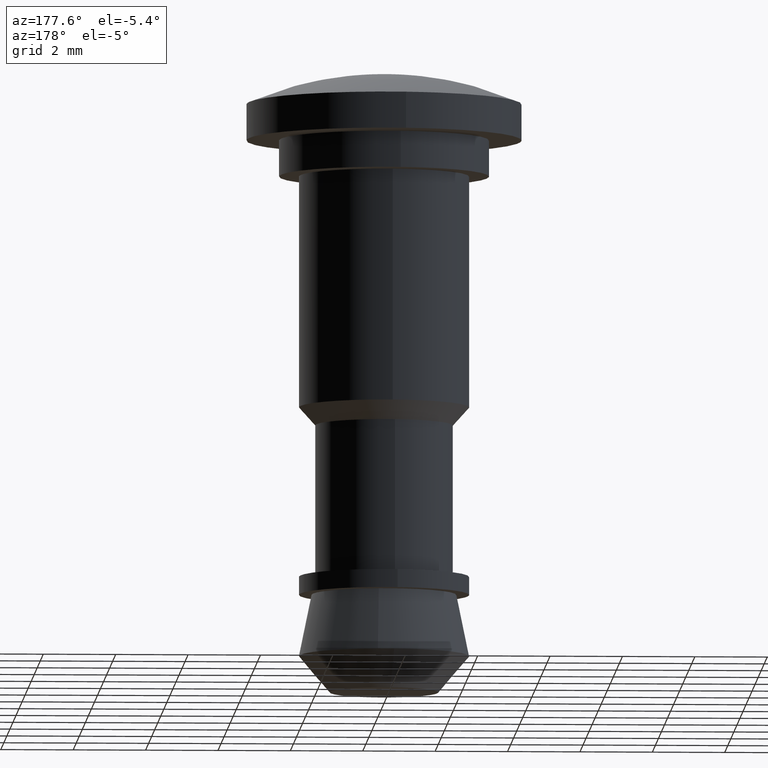
[diagram: clean part render]
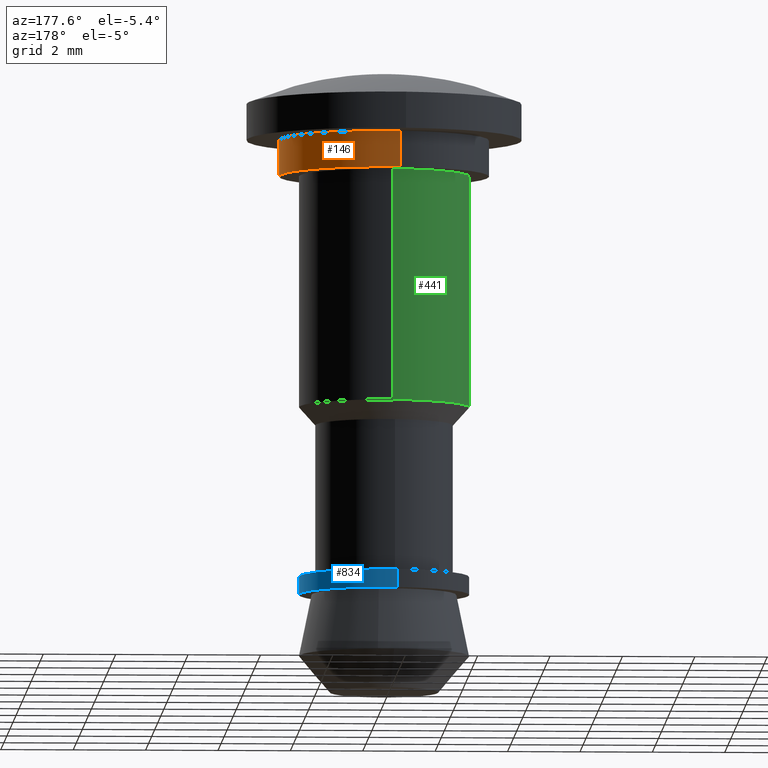
[diagram: same view with three faces highlighted in distinct colors, each labeled with its STEP entity id]
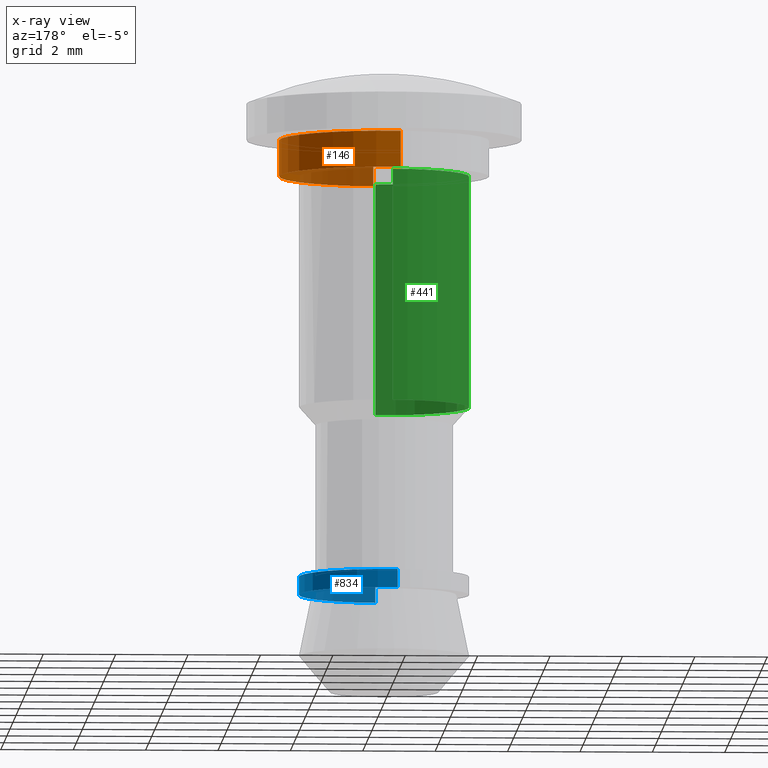
[diagram: x-ray of the same camera — body ghosted, the three highlighted faces saturated]
A machine part, auxiliary view with three faces highlighted in distinct colors.
The next image is the same camera in x-ray (body ghosted, the three faces saturated) — at least one of them is partly hidden behind the body in this view.
Their STEP definitions:

[orange] entity #146 — the highlighted face is a freeform B-spline surface patch.
#44=CARTESIAN_POINT('',(-0.342299280504600,2.879727626454632,1.025000000000000));
#45=CARTESIAN_POINT('',(-0.259882713050135,2.889524084800957,1.025000000000000));
#46=CARTESIAN_POINT('',(-0.177040764651085,2.894590915423414,1.025000000000000));
#47=CARTESIAN_POINT('',(2.717550150772328,3.071631680074499,1.025000000000000));
#48=CARTESIAN_POINT('',(2.894590915423414,0.177040764651085,1.025000000000000));
#49=CARTESIAN_POINT('',(3.071631680074499,-2.717550150772328,1.025000000000000));
#50=CARTESIAN_POINT('',(0.177040764651085,-2.894590915423414,1.025000000000000));
#51=CARTESIAN_POINT('',(-0.342299280504600,2.879727626454632,-0.025625000000000));
#52=CARTESIAN_POINT('',(-0.259882713050135,2.889524084800957,-0.025625000000000));
#53=CARTESIAN_POINT('',(-0.177040764651085,2.894590915423414,-0.025625000000000));
#54=CARTESIAN_POINT('',(2.717550150772328,3.071631680074499,-0.025625000000000));
#55=CARTESIAN_POINT('',(2.894590915423414,0.177040764651085,-0.025625000000000));
#56=CARTESIAN_POINT('',(3.071631680074499,-2.717550150772328,-0.025625000000000));
#57=CARTESIAN_POINT('',(0.177040764651085,-2.894590915423414,-0.025625000000000));
#65=(BOUNDED_SURFACE()B_SPLINE_SURFACE(2,1,((#44,#51),(#45,#52),(#46,#53),(#47,#54),(#48,#55),(#49,#56),(#50,#57)),.UNSPECIFIED.,.F.,.F.,.U.)B_SPLINE_SURFACE_WITH_KNOTS((3,2,2,3),(2,2),(0.0,0.192195092941116,4.997072416469019,9.801949739996921),(0.0,1.0),.UNSPECIFIED.)GEOMETRIC_REPRESENTATION_ITEM()RATIONAL_B_SPLINE_SURFACE(((0.977505800795127,0.977505800795127),(0.988284271247462,0.988284271247462),(1.0,1.0),(0.707106781186548,0.707106781186548),(1.0,1.0),(0.707106781186548,0.707106781186548),(1.0,1.0)))REPRESENTATION_ITEM('')SURFACE());
#66=CARTESIAN_POINT('',(-0.342295316084380,2.879728097680535,1.000000000000084));
#67=VERTEX_POINT('',#66);
#68=CARTESIAN_POINT('',(2.900000000000000,0.0,1.0));
#69=VERTEX_POINT('',#68);
#70=CARTESIAN_POINT('',(-0.342295316084380,2.879728097680535,1.000000000000084));
#71=CARTESIAN_POINT('',(-0.171747943825167,2.900000000000000,1.0));
#72=CARTESIAN_POINT('',(0.0,2.900000000000000,1.0));
#73=CARTESIAN_POINT('',(2.900000000000000,2.900000000000000,1.0));
#74=CARTESIAN_POINT('',(2.900000000000000,0.0,1.0));
#82=(BOUNDED_CURVE()B_SPLINE_CURVE(2,(#70,#71,#72,#73,#74),.UNSPECIFIED.,.F.,.U.)B_SPLINE_CURVE_WITH_KNOTS((3,2,3),(0.229562706176520,0.250000000000000,0.500000000000000),.UNSPECIFIED.)CURVE()GEOMETRIC_REPRESENTATION_ITEM()RATIONAL_B_SPLINE_CURVE((0.956027210213232,0.976056220912819,1.0,0.707106781186548,1.0))REPRESENTATION_ITEM(''));
#83=EDGE_CURVE('',#67,#69,#82,.T.);
#84=ORIENTED_EDGE('',*,*,#83,.T.);
#85=CARTESIAN_POINT('',(0.177037979228234,-2.894591085784483,0.999999999999942));
#86=VERTEX_POINT('',#85);
#87=CARTESIAN_POINT('',(2.900000000000000,0.0,1.0));
#88=CARTESIAN_POINT('',(2.900000000000001,-2.728050224093783,1.0));
#89=CARTESIAN_POINT('',(0.177037979228234,-2.894591085784484,0.999999999999942));
#97=(BOUNDED_CURVE()B_SPLINE_CURVE(2,(#87,#88,#89),.UNSPECIFIED.,.F.,.U.)B_SPLINE_CURVE_WITH_KNOTS((3,3),(0.500000000000000,0.739333128281262),.UNSPECIFIED.)CURVE()GEOMETRIC_REPRESENTATION_ITEM()RATIONAL_B_SPLINE_CURVE((1.0,0.719603798756033,0.976072397527273))REPRESENTATION_ITEM(''));
#98=EDGE_CURVE('',#69,#86,#97,.T.);
#99=ORIENTED_EDGE('',*,*,#98,.T.);
#100=CARTESIAN_POINT('',(0.177038012750762,-2.894591083734222,-5.204170E-017));
#101=VERTEX_POINT('',#100);
#102=CARTESIAN_POINT('',(0.177037979228234,-2.894591085784483,0.999999999999942));
#103=CARTESIAN_POINT('',(0.177038012750762,-2.894591083734222,-5.204170E-017));
#104=QUASI_UNIFORM_CURVE('',1,(#102,#103),.UNSPECIFIED.,.F.,.U.);
#105=EDGE_CURVE('',#86,#101,#104,.T.);
#106=ORIENTED_EDGE('',*,*,#105,.T.);
#107=CARTESIAN_POINT('',(2.900000000000000,0.0,0.0));
#108=VERTEX_POINT('',#107);
#109=CARTESIAN_POINT('',(2.900000000000000,0.0,0.0));
#110=CARTESIAN_POINT('',(2.900000000000001,-2.728050192440946,0.0));
#111=CARTESIAN_POINT('',(0.177038012750762,-2.894591083734222,-5.204170E-017));
#119=(BOUNDED_CURVE()B_SPLINE_CURVE(2,(#109,#110,#111),.UNSPECIFIED.,.F.,.U.)B_SPLINE_CURVE_WITH_KNOTS((3,3),(0.500000000000000,0.739333126282981),.UNSPECIFIED.)CURVE()GEOMETRIC_REPRESENTATION_ITEM()RATIONAL_B_SPLINE_CURVE((1.0,0.719603801097165,0.976072393244570))REPRESENTATION_ITEM(''));
#120=EDGE_CURVE('',#108,#101,#119,.T.);
#121=ORIENTED_EDGE('',*,*,#120,.F.);
#122=CARTESIAN_POINT('',(-0.342295363880158,2.879728091999415,-5.146464E-017));
#123=VERTEX_POINT('',#122);
#124=CARTESIAN_POINT('',(-0.342295363880158,2.879728091999415,-5.146464E-017));
#125=CARTESIAN_POINT('',(-0.171747967975691,2.900000000000000,0.0));
#126=CARTESIAN_POINT('',(0.0,2.900000000000000,0.0));
#127=CARTESIAN_POINT('',(2.900000000000000,2.900000000000000,0.0));
#128=CARTESIAN_POINT('',(2.900000000000000,0.0,0.0));
#136=(BOUNDED_CURVE()B_SPLINE_CURVE(2,(#124,#125,#126,#127,#128),.UNSPECIFIED.,.F.,.U.)B_SPLINE_CURVE_WITH_KNOTS((3,2,3),(0.229562703371518,0.250000000000000,0.500000000000000),.UNSPECIFIED.)CURVE()GEOMETRIC_REPRESENTATION_ITEM()RATIONAL_B_SPLINE_CURVE((0.956027204715300,0.976056217626554,1.0,0.707106781186548,1.0))REPRESENTATION_ITEM(''));
#137=EDGE_CURVE('',#123,#108,#136,.T.);
#138=ORIENTED_EDGE('',*,*,#137,.F.);
#139=CARTESIAN_POINT('',(-0.342295316084380,2.879728097680535,1.000000000000084));
#140=CARTESIAN_POINT('',(-0.342295363880158,2.879728091999415,-5.146464E-017));
#141=QUASI_UNIFORM_CURVE('',1,(#139,#140),.UNSPECIFIED.,.F.,.U.);
#142=EDGE_CURVE('',#67,#123,#141,.T.);
#143=ORIENTED_EDGE('',*,*,#142,.F.);
#144=EDGE_LOOP('',(#84,#99,#106,#121,#138,#143));
#145=FACE_OUTER_BOUND('',#144,.T.);
#146=ADVANCED_FACE('',(#145),#65,.T.);

[blue] entity #834 — the highlighted face is a freeform B-spline surface patch.
#732=CARTESIAN_POINT('',(-0.277380451443382,2.333572386954616,-11.087500000000002));
#733=CARTESIAN_POINT('',(-0.210594612299248,2.341510896304224,-11.087499999999997));
#734=CARTESIAN_POINT('',(-0.143464067906914,2.345616776291387,-11.087500000000000));
#735=CARTESIAN_POINT('',(2.202152708384472,2.489080844198301,-11.087499999999999));
#736=CARTESIAN_POINT('',(2.345616776291387,0.143464067906914,-11.087500000000000));
#737=CARTESIAN_POINT('',(2.489080844198301,-2.202152708384472,-11.087499999999999));
#738=CARTESIAN_POINT('',(0.143464067906914,-2.345616776291387,-11.087500000000000));
#739=CARTESIAN_POINT('',(-0.277380451443382,2.333572386954616,-11.612812500000004));
#740=CARTESIAN_POINT('',(-0.210594612299248,2.341510896304224,-11.612812500000004));
#741=CARTESIAN_POINT('',(-0.143464067906914,2.345616776291387,-11.612812500000000));
#742=CARTESIAN_POINT('',(2.202152708384472,2.489080844198301,-11.612812500000002));
#743=CARTESIAN_POINT('',(2.345616776291387,0.143464067906914,-11.612812500000000));
#744=CARTESIAN_POINT('',(2.489080844198301,-2.202152708384472,-11.612812500000002));
#745=CARTESIAN_POINT('',(0.143464067906914,-2.345616776291387,-11.612812500000000));
#753=(BOUNDED_SURFACE()B_SPLINE_SURFACE(2,1,((#732,#739),(#733,#740),(#734,#741),(#735,#742),(#736,#743),(#737,#744),(#738,#745)),.UNSPECIFIED.,.F.,.F.,.U.)B_SPLINE_SURFACE_WITH_KNOTS((3,2,2,3),(2,2),(0.0,0.155744299452284,4.049351785759376,7.942959272066468),(0.0,1.0),.UNSPECIFIED.)GEOMETRIC_REPRESENTATION_ITEM()RATIONAL_B_SPLINE_SURFACE(((0.977505800795127,0.977505800795127),(0.988284271247462,0.988284271247462),(1.0,1.0),(0.707106781186548,0.707106781186548),(1.0,1.0),(0.707106781186548,0.707106781186548),(1.0,1.0)))REPRESENTATION_ITEM('')SURFACE());
#754=CARTESIAN_POINT('',(-0.277376736578888,2.333572828516576,-11.100000000000190));
#755=VERTEX_POINT('',#754);
#756=CARTESIAN_POINT('',(2.350000000000000,0.0,-11.100000000000000));
#757=VERTEX_POINT('',#756);
#758=CARTESIAN_POINT('',(-0.277376736578888,2.333572828516576,-11.100000000000195));
#759=CARTESIAN_POINT('',(-0.139174804113649,2.350000000000000,-11.100000000000003));
#760=CARTESIAN_POINT('',(0.0,2.350000000000000,-11.100000000000000));
#761=CARTESIAN_POINT('',(2.350000000000001,2.350000000000001,-11.100000000000001));
#762=CARTESIAN_POINT('',(2.350000000000000,0.0,-11.100000000000000));
#770=(BOUNDED_CURVE()B_SPLINE_CURVE(2,(#758,#759,#760,#761,#762),.UNSPECIFIED.,.F.,.U.)B_SPLINE_CURVE_WITH_KNOTS((3,2,3),(0.229562742555607,0.250000000000000,0.500000000000000),.UNSPECIFIED.)CURVE()GEOMETRIC_REPRESENTATION_ITEM()RATIONAL_B_SPLINE_CURVE((0.956027281517901,0.976056263533570,1.0,0.707106781186547,1.0))REPRESENTATION_ITEM(''));
#771=EDGE_CURVE('',#755,#757,#770,.T.);
#772=ORIENTED_EDGE('',*,*,#771,.T.);
#773=CARTESIAN_POINT('',(0.143464067918807,-2.345616776290660,-11.100000000000000));
#774=VERTEX_POINT('',#773);
#775=CARTESIAN_POINT('',(2.350000000000000,0.0,-11.100000000000000));
#776=CARTESIAN_POINT('',(2.350000000000001,-2.210659257205937,-11.100000000000001));
#777=CARTESIAN_POINT('',(0.143464067918807,-2.345616776290660,-11.100000000000001));
#785=(BOUNDED_CURVE()B_SPLINE_CURVE(2,(#775,#776,#777),.UNSPECIFIED.,.F.,.U.)B_SPLINE_CURVE_WITH_KNOTS((3,3),(0.500000000000000,0.739332962240220),.UNSPECIFIED.)CURVE()GEOMETRIC_REPRESENTATION_ITEM()RATIONAL_B_SPLINE_CURVE((1.0,0.719603993285214,0.976072041669454))REPRESENTATION_ITEM(''));
#786=EDGE_CURVE('',#757,#774,#785,.T.);
#787=ORIENTED_EDGE('',*,*,#786,.T.);
#788=CARTESIAN_POINT('',(0.143464067918807,-2.345616776290660,-11.600000000000000));
#789=VERTEX_POINT('',#788);
#790=CARTESIAN_POINT('',(0.143464067918807,-2.345616776290660,-11.100000000000000));
#791=CARTESIAN_POINT('',(0.143464067918807,-2.345616776290660,-11.600000000000000));
#792=QUASI_UNIFORM_CURVE('',1,(#790,#791),.UNSPECIFIED.,.F.,.U.);
#793=EDGE_CURVE('',#774,#789,#792,.T.);
#794=ORIENTED_EDGE('',*,*,#793,.T.);
#795=CARTESIAN_POINT('',(2.350000000000000,0.0,-11.600000000000000));
#796=VERTEX_POINT('',#795);
#797=CARTESIAN_POINT('',(2.350000000000000,0.0,-11.600000000000000));
#798=CARTESIAN_POINT('',(2.350000000000000,-2.210659257205910,-11.600000000000000));
#799=CARTESIAN_POINT('',(0.143464067918807,-2.345616776290660,-11.600000000000000));
#807=(BOUNDED_CURVE()B_SPLINE_CURVE(2,(#797,#798,#799),.UNSPECIFIED.,.F.,.U.)B_SPLINE_CURVE_WITH_KNOTS((3,3),(0.500000000000000,0.739332962240217),.UNSPECIFIED.)CURVE()GEOMETRIC_REPRESENTATION_ITEM()RATIONAL_B_SPLINE_CURVE((1.0,0.719603993285217,0.976072041669449))REPRESENTATION_ITEM(''));
#808=EDGE_CURVE('',#796,#789,#807,.T.);
#809=ORIENTED_EDGE('',*,*,#808,.F.);
#810=CARTESIAN_POINT('',(-0.277376781298227,2.333572823201148,-11.600000000000000));
#811=VERTEX_POINT('',#810);
#812=CARTESIAN_POINT('',(-0.277376781298227,2.333572823201148,-11.600000000000000));
#813=CARTESIAN_POINT('',(-0.139174826709691,2.350000000000001,-11.600000000000003));
#814=CARTESIAN_POINT('',(0.0,2.350000000000000,-11.600000000000000));
#815=CARTESIAN_POINT('',(2.350000000000001,2.350000000000001,-11.600000000000001));
#816=CARTESIAN_POINT('',(2.350000000000000,0.0,-11.600000000000000));
#824=(BOUNDED_CURVE()B_SPLINE_CURVE(2,(#812,#813,#814,#815,#816),.UNSPECIFIED.,.F.,.U.)B_SPLINE_CURVE_WITH_KNOTS((3,2,3),(0.229562739316918,0.250000000000000,0.500000000000000),.UNSPECIFIED.)CURVE()GEOMETRIC_REPRESENTATION_ITEM()RATIONAL_B_SPLINE_CURVE((0.956027275169922,0.976056259739210,1.0,0.707106781186547,1.0))REPRESENTATION_ITEM(''));
#825=EDGE_CURVE('',#811,#796,#824,.T.);
#826=ORIENTED_EDGE('',*,*,#825,.F.);
#827=CARTESIAN_POINT('',(-0.277376736578888,2.333572828516576,-11.100000000000190));
#828=CARTESIAN_POINT('',(-0.277376781298227,2.333572823201148,-11.600000000000000));
#829=QUASI_UNIFORM_CURVE('',1,(#827,#828),.UNSPECIFIED.,.F.,.U.);
#830=EDGE_CURVE('',#755,#811,#829,.T.);
#831=ORIENTED_EDGE('',*,*,#830,.F.);
#832=EDGE_LOOP('',(#772,#787,#794,#809,#826,#831));
#833=FACE_OUTER_BOUND('',#832,.T.);
#834=ADVANCED_FACE('',(#833),#753,.T.);

[green] entity #441 — the highlighted face is a freeform B-spline surface patch.
#248=CARTESIAN_POINT('',(-0.143464067918807,2.345616776290660,-6.400000000000111));
#249=VERTEX_POINT('',#248);
#267=CARTESIAN_POINT('',(-0.143464067918807,2.345616776290660,2.220446E-016));
#268=VERTEX_POINT('',#267);
#269=CARTESIAN_POINT('',(-0.143464067918807,2.345616776290660,2.220446E-016));
#270=CARTESIAN_POINT('',(-0.143464067918807,2.345616776290660,-6.400000000000111));
#271=QUASI_UNIFORM_CURVE('',1,(#269,#270),.UNSPECIFIED.,.F.,.U.);
#272=EDGE_CURVE('',#268,#249,#271,.T.);
#291=CARTESIAN_POINT('',(0.143464067918807,-2.345616776290660,2.220446E-016));
#292=VERTEX_POINT('',#291);
#306=CARTESIAN_POINT('',(0.143463873339650,-2.345616788191615,-6.400000000000112));
#307=VERTEX_POINT('',#306);
#308=CARTESIAN_POINT('',(0.143464067918807,-2.345616776290660,2.220446E-016));
#309=CARTESIAN_POINT('',(0.143463873339650,-2.345616788191615,-6.400000000000112));
#310=QUASI_UNIFORM_CURVE('',1,(#308,#309),.UNSPECIFIED.,.F.,.U.);
#311=EDGE_CURVE('',#292,#307,#310,.T.);
#359=CARTESIAN_POINT('',(0.143464067906914,-2.345616776291387,0.160000000000003));
#360=CARTESIAN_POINT('',(-2.202152708384472,-2.489080844198301,0.160000000000003));
#361=CARTESIAN_POINT('',(-2.345616776291387,-0.143464067906914,0.160000000000003));
#362=CARTESIAN_POINT('',(-2.489080844198301,2.202152708384472,0.160000000000003));
#363=CARTESIAN_POINT('',(-0.143464067906914,2.345616776291387,0.160000000000003));
#364=CARTESIAN_POINT('',(0.143464067906914,-2.345616776291387,-6.564000000000114));
#365=CARTESIAN_POINT('',(-2.202152708384472,-2.489080844198301,-6.564000000000114));
#366=CARTESIAN_POINT('',(-2.345616776291387,-0.143464067906914,-6.564000000000114));
#367=CARTESIAN_POINT('',(-2.489080844198301,2.202152708384472,-6.564000000000114));
#368=CARTESIAN_POINT('',(-0.143464067906914,2.345616776291387,-6.564000000000114));
#376=(BOUNDED_SURFACE()B_SPLINE_SURFACE(2,1,((#359,#364),(#360,#365),(#361,#366),(#362,#367),(#363,#368)),.UNSPECIFIED.,.F.,.F.,.U.)B_SPLINE_SURFACE_WITH_KNOTS((3,2,3),(2,2),(0.0,3.893607486307092,7.787214972614184),(0.0,6.724000000000117),.UNSPECIFIED.)GEOMETRIC_REPRESENTATION_ITEM()RATIONAL_B_SPLINE_SURFACE(((1.0,1.0),(0.707106781186548,0.707106781186548),(1.0,1.0),(0.707106781186548,0.707106781186548),(1.0,1.0)))REPRESENTATION_ITEM('')SURFACE());
#377=CARTESIAN_POINT('',(-2.350000000000000,0.0,-6.400000000000111));
#378=VERTEX_POINT('',#377);
#379=CARTESIAN_POINT('',(-2.350000000000000,0.0,-6.400000000000111));
#380=CARTESIAN_POINT('',(-2.350000000000001,2.210659257205923,-6.400000000000111));
#381=CARTESIAN_POINT('',(-0.143464067918807,2.345616776290660,-6.400000000000111));
#389=(BOUNDED_CURVE()B_SPLINE_CURVE(2,(#379,#380,#381),.UNSPECIFIED.,.F.,.U.)B_SPLINE_CURVE_WITH_KNOTS((3,3),(0.0,0.239332962240218),.UNSPECIFIED.)CURVE()GEOMETRIC_REPRESENTATION_ITEM()RATIONAL_B_SPLINE_CURVE((1.0,0.719603993285216,0.976072041669452))REPRESENTATION_ITEM(''));
#390=EDGE_CURVE('',#378,#249,#389,.T.);
#391=ORIENTED_EDGE('',*,*,#390,.F.);
#392=CARTESIAN_POINT('',(0.143463873339650,-2.345616788191615,-6.400000000000112));
#393=CARTESIAN_POINT('',(0.071798798638874,-2.350000000000000,-6.400000000000111));
#394=CARTESIAN_POINT('',(0.0,-2.350000000000000,-6.400000000000111));
#395=CARTESIAN_POINT('',(-2.350000000000001,-2.350000000000001,-6.400000000000110));
#396=CARTESIAN_POINT('',(-2.350000000000000,0.0,-6.400000000000111));
#404=(BOUNDED_CURVE()B_SPLINE_CURVE(2,(#392,#393,#394,#395,#396),.UNSPECIFIED.,.F.,.U.)B_SPLINE_CURVE_WITH_KNOTS((3,2,3),(0.739332990867239,0.750000000000000,1.0),.UNSPECIFIED.)CURVE()GEOMETRIC_REPRESENTATION_ITEM()RATIONAL_B_SPLINE_CURVE((0.976072103022614,0.987502821439973,1.0,0.707106781186547,1.0))REPRESENTATION_ITEM(''));
#405=EDGE_CURVE('',#307,#378,#404,.T.);
#406=ORIENTED_EDGE('',*,*,#405,.F.);
#407=ORIENTED_EDGE('',*,*,#311,.F.);
#408=CARTESIAN_POINT('',(-2.350000000000000,0.0,0.0));
#409=VERTEX_POINT('',#408);
#410=CARTESIAN_POINT('',(0.143464067918807,-2.345616776290660,2.220446E-016));
#411=CARTESIAN_POINT('',(0.071798993763611,-2.350000000000000,0.0));
#412=CARTESIAN_POINT('',(0.0,-2.350000000000000,0.0));
#413=CARTESIAN_POINT('',(-2.350000000000001,-2.350000000000001,0.0));
#414=CARTESIAN_POINT('',(-2.350000000000000,0.0,0.0));
#422=(BOUNDED_CURVE()B_SPLINE_CURVE(2,(#410,#411,#412,#413,#414),.UNSPECIFIED.,.F.,.U.)B_SPLINE_CURVE_WITH_KNOTS((3,2,3),(0.739332962240218,0.750000000000000,1.0),.UNSPECIFIED.)CURVE()GEOMETRIC_REPRESENTATION_ITEM()RATIONAL_B_SPLINE_CURVE((0.976072041669452,0.987502787901332,1.0,0.707106781186547,1.0))REPRESENTATION_ITEM(''));
#423=EDGE_CURVE('',#292,#409,#422,.T.);
#424=ORIENTED_EDGE('',*,*,#423,.T.);
#425=CARTESIAN_POINT('',(-2.350000000000000,0.0,0.0));
#426=CARTESIAN_POINT('',(-2.350000000000001,2.210659257205923,0.0));
#427=CARTESIAN_POINT('',(-0.143464067918807,2.345616776290660,2.220446E-016));
#435=(BOUNDED_CURVE()B_SPLINE_CURVE(2,(#425,#426,#427),.UNSPECIFIED.,.F.,.U.)B_SPLINE_CURVE_WITH_KNOTS((3,3),(0.0,0.239332962240218),.UNSPECIFIED.)CURVE()GEOMETRIC_REPRESENTATION_ITEM()RATIONAL_B_SPLINE_CURVE((1.0,0.719603993285216,0.976072041669452))REPRESENTATION_ITEM(''));
#436=EDGE_CURVE('',#409,#268,#435,.T.);
#437=ORIENTED_EDGE('',*,*,#436,.T.);
#438=ORIENTED_EDGE('',*,*,#272,.T.);
#439=EDGE_LOOP('',(#391,#406,#407,#424,#437,#438));
#440=FACE_OUTER_BOUND('',#439,.T.);
#441=ADVANCED_FACE('',(#440),#376,.T.);